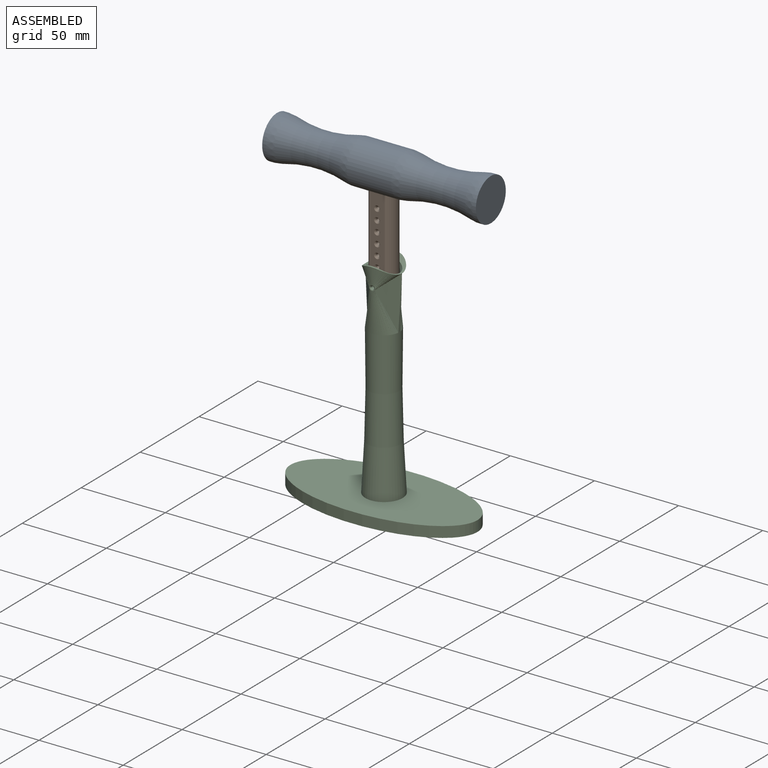
[diagram: assembled view]
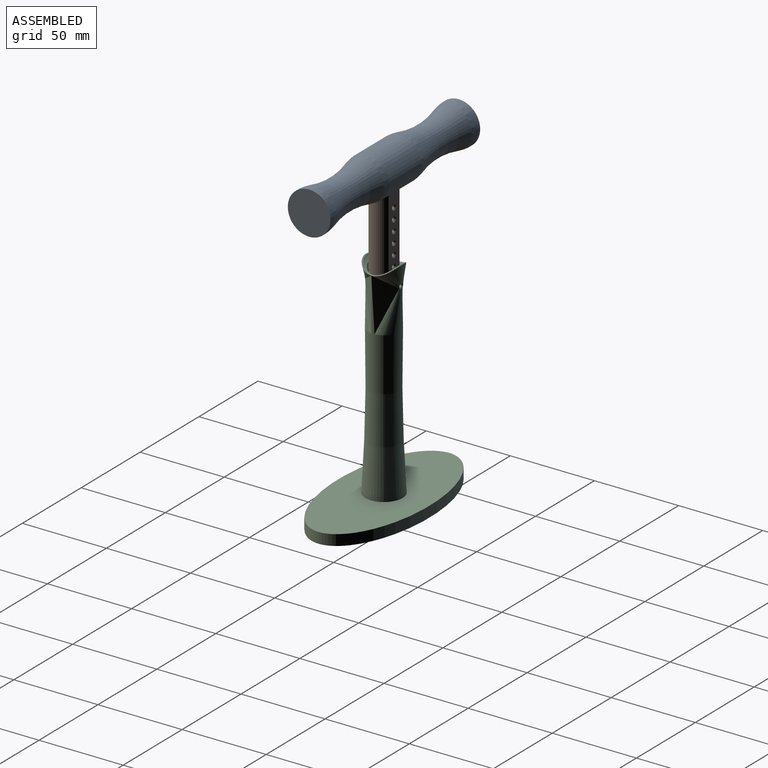
[diagram: assembled view, second angle]
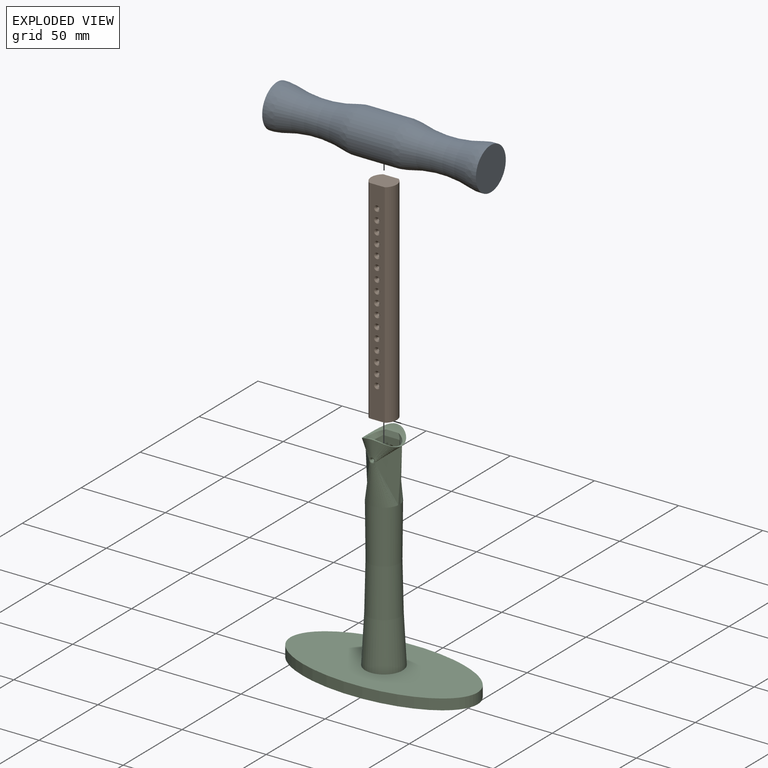
[diagram: exploded view]
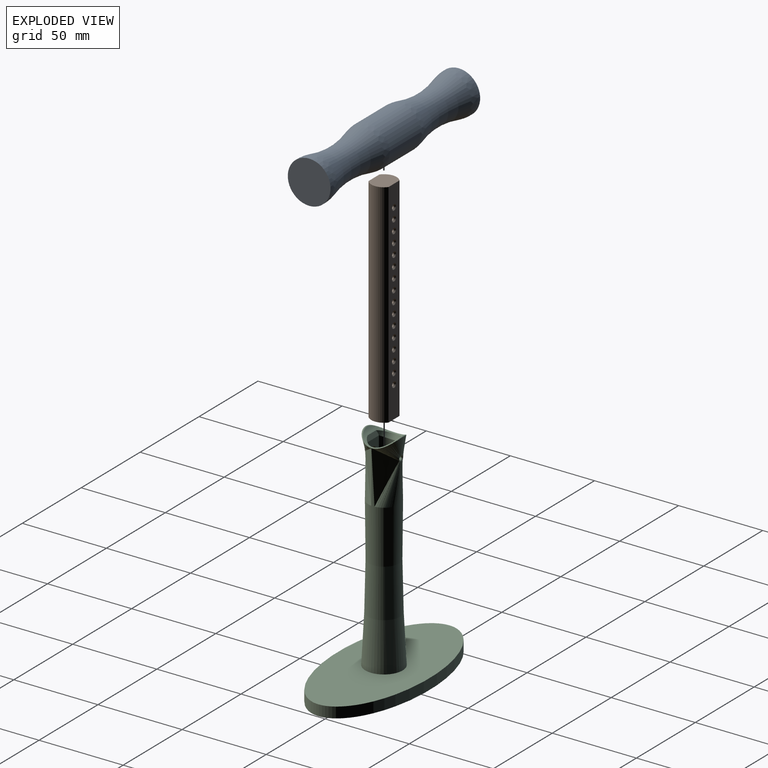
[diagram: exploded view, second angle]
ASSEMBLY  parts=3 mates=2
PART A: 16 faces, bbox 179.6x67x67 mm
  f0: cylinder r=12.7mm len=26.44mm, axis (-1,0,0), area 1937.9mm2, adj f1,f2,f3,f4,f8,f13
  f1: cylinder r=7.68mm len=12.19mm, axis (0,0,1), area 74.2mm2, adj f0,f2,f4,f5
  f2: plane 9.35x4.28mm, normal (0,-1,0), area 40.1mm2, adj f0,f1,f3,f5
  f3: cylinder r=7.68mm len=12.19mm, axis (0,0,1), area 74.2mm2, adj f0,f2,f4,f5
  f4: plane 9.35x4.28mm, normal (0,1,0), area 40.1mm2, adj f0,f1,f3,f5
  f5: plane 15.37x12.19mm, normal (0,0,-1), area 165.2mm2, adj f1,f2,f3,f4
  f6: torus R=83.44mm, axis (1,0,0), area 2524.3mm2, adj f7,f8
  f7: revolved ~25.4x25.4mm, area 391.6mm2, adj f6,f10
  f8: revolved ~25.4x25.4mm, area 391.6mm2, adj f0,f6
  f9: plane 25.4x25.4mm, normal (1,0,0), area 506.7mm2, adj f10
  f10: cylinder r=12.7mm len=25.4mm, axis (-1,0,0), area 168mm2, adj f7,f9
  f11: revolved ~25.4x25.4mm, area 391.6mm2, adj f12,f15
  f12: torus R=83.44mm, axis (1,0,0), area 2524.3mm2, adj f11,f13
  f13: revolved ~25.4x25.4mm, area 391.6mm2, adj f0,f12
  f14: plane 25.4x25.4mm, normal (-1,0,0), area 506.7mm2, adj f15
  f15: cylinder r=12.7mm len=25.4mm, axis (-1,0,0), area 168mm2, adj f11,f14
PART B: 54 faces, bbox 15.1x11.9x126.5 mm
  f0: plane 15.11x11.94mm, normal (0,0,1), area 159.3mm2, adj f1,f2,f3,f4
  f1: plane 126.49x9.27mm, normal (0,1,0), area 1029.2mm2, adj f0,f2,f4,f5,f27,f28,f29,f30
  f2: cylinder r=7.56mm len=126.49mm, axis (0,0,-1), area 1740.9mm2, adj f0,f1,f3,f5
  f3: plane 126.49x9.27mm, normal (0,-1,0), area 1029.2mm2, adj f0,f2,f4,f5,f22,f23,f24,f25
  f4: cylinder r=7.56mm len=126.49mm, axis (0,0,-1), area 1740.9mm2, adj f0,f1,f3,f5
  f5: plane 15.11x11.94mm, normal (0,0,-1), area 159.3mm2, adj f1,f2,f3,f4
  f6: cylinder r=0.93mm len=10.41mm, axis (0,-1,0), area 60.5mm2, adj f22,f27
  f7: cylinder r=0.93mm len=10.41mm, axis (0,-1,0), area 60.5mm2, adj f23,f28
  f8: cylinder r=0.93mm len=10.41mm, axis (0,-1,0), area 60.5mm2, adj f24,f29
  f9: cylinder r=0.93mm len=10.41mm, axis (0,-1,0), area 60.5mm2, adj f25,f30
  f10: cylinder r=0.93mm len=10.41mm, axis (0,-1,0), area 60.5mm2, adj f26,f31
  f11: cylinder r=0.93mm len=10.41mm, axis (0,-1,0), area 60.5mm2, adj f32,f43
  f12: cylinder r=0.93mm len=10.41mm, axis (0,-1,0), area 60.5mm2, adj f33,f44
  f13: cylinder r=0.93mm len=10.41mm, axis (0,-1,0), area 60.5mm2, adj f34,f45
  f14: cylinder r=0.93mm len=10.41mm, axis (0,-1,0), area 60.5mm2, adj f35,f46
  f15: cylinder r=0.93mm len=10.41mm, axis (0,-1,0), area 60.5mm2, adj f36,f47
  f16: cylinder r=0.93mm len=10.41mm, axis (0,-1,0), area 60.5mm2, adj f37,f48
  f17: cylinder r=0.93mm len=10.41mm, axis (0,-1,0), area 60.5mm2, adj f38,f49
  f18: cylinder r=0.93mm len=10.41mm, axis (0,-1,0), area 60.5mm2, adj f39,f50
  f19: cylinder r=0.93mm len=10.41mm, axis (0,-1,0), area 60.5mm2, adj f40,f51
  f20: cylinder r=0.93mm len=10.41mm, axis (0,-1,0), area 60.5mm2, adj f41,f52
  f21: cylinder r=0.93mm len=10.41mm, axis (0,-1,0), area 60.5mm2, adj f42,f53
  f22: cone r=0.93mm half-angle=45deg, axis (0,-1,0), area 8.8mm2, adj f3,f6
  f23: cone r=0.93mm half-angle=45deg, axis (0,-1,0), area 8.8mm2, adj f3,f7
  f24: cone r=0.93mm half-angle=45deg, axis (0,-1,0), area 8.8mm2, adj f3,f8
  f25: cone r=0.93mm half-angle=45deg, axis (0,-1,0), area 8.8mm2, adj f3,f9
  f26: cone r=0.93mm half-angle=45deg, axis (0,-1,0), area 8.8mm2, adj f3,f10
  f27: cone r=0.93mm half-angle=45deg, axis (0,1,0), area 8.8mm2, adj f1,f6
  f28: cone r=0.93mm half-angle=45deg, axis (0,1,0), area 8.8mm2, adj f1,f7
  f29: cone r=0.93mm half-angle=45deg, axis (0,1,0), area 8.8mm2, adj f1,f8
  f30: cone r=0.93mm half-angle=45deg, axis (0,1,0), area 8.8mm2, adj f1,f9
  f31: cone r=0.93mm half-angle=45deg, axis (0,1,0), area 8.8mm2, adj f1,f10
  f32: cone r=0.93mm half-angle=45deg, axis (0,1,0), area 8.8mm2, adj f1,f11
  f33: cone r=0.93mm half-angle=45deg, axis (0,1,0), area 8.8mm2, adj f1,f12
  f34: cone r=0.93mm half-angle=45deg, axis (0,1,0), area 8.8mm2, adj f1,f13
  f35: cone r=0.93mm half-angle=45deg, axis (0,1,0), area 8.8mm2, adj f1,f14
  f36: cone r=0.93mm half-angle=45deg, axis (0,1,0), area 8.8mm2, adj f1,f15
  f37: cone r=0.93mm half-angle=45deg, axis (0,1,0), area 8.8mm2, adj f1,f16
  f38: cone r=0.93mm half-angle=45deg, axis (0,1,0), area 8.8mm2, adj f1,f17
  f39: cone r=0.93mm half-angle=45deg, axis (0,1,0), area 8.8mm2, adj f1,f18
  f40: cone r=0.93mm half-angle=45deg, axis (0,1,0), area 8.8mm2, adj f1,f19
  f41: cone r=0.93mm half-angle=45deg, axis (0,1,0), area 8.8mm2, adj f1,f20
  f42: cone r=0.93mm half-angle=45deg, axis (0,1,0), area 8.8mm2, adj f1,f21
  f43: cone r=0.93mm half-angle=45deg, axis (0,-1,0), area 8.8mm2, adj f3,f11
  f44: cone r=0.93mm half-angle=45deg, axis (0,-1,0), area 8.8mm2, adj f3,f12
  f45: cone r=0.93mm half-angle=45deg, axis (0,-1,0), area 8.8mm2, adj f3,f13
  f46: cone r=0.93mm half-angle=45deg, axis (0,-1,0), area 8.8mm2, adj f3,f14
  f47: cone r=0.93mm half-angle=45deg, axis (0,-1,0), area 8.8mm2, adj f3,f15
  f48: cone r=0.93mm half-angle=45deg, axis (0,-1,0), area 8.8mm2, adj f3,f16
  f49: cone r=0.93mm half-angle=45deg, axis (0,-1,0), area 8.8mm2, adj f3,f17
  f50: cone r=0.93mm half-angle=45deg, axis (0,-1,0), area 8.8mm2, adj f3,f18
  f51: cone r=0.93mm half-angle=45deg, axis (0,-1,0), area 8.8mm2, adj f3,f19
  f52: cone r=0.93mm half-angle=45deg, axis (0,-1,0), area 8.8mm2, adj f3,f20
  f53: cone r=0.93mm half-angle=45deg, axis (0,-1,0), area 8.8mm2, adj f3,f21
PART C: 21 faces, bbox 606x606x1326.6 mm
  f0: plane 111.13x53.98mm, normal (0,0,1), area 4322.8mm2, adj f1,f3
  f1: extruded ~111.13x53.98mm, area 1696.6mm2, adj f0,f2
  f2: plane 111.13x53.98mm, normal (0,0,-1), area 4710.8mm2, adj f1
  f3: torus R=943.02mm, axis (0,0,1), area 7414.8mm2, adj f0,f10,f17,f18
  f4: bspline ~15.41x7.55mm, area 51.1mm2, adj f6,f9,f11,f14
  f5: bspline ~15.41x7.55mm, area 51.1mm2, adj f6,f8,f9,f11
  f6: plane 9.77x3.26mm, normal (0,-0.96,0.27), area 27mm2, adj f4,f5,f9,f12
  f7: plane 15.88x12.7mm, normal (0,0,1), area 177.3mm2, adj f8,f12,f14,f15
  f8: cylinder r=7.94mm len=119.73mm, axis (0,0,1), area 1762.5mm2, adj f5,f7,f12,f15
  f9: cylinder r=12.83mm len=20.96mm, axis (1,0,0), area 125.3mm2, adj f4,f5,f6,f10,f11
  f10: bspline ~22.11x21.98mm, area 50.5mm2, adj f3,f9
  f11: plane 9.77x3.26mm, normal (0,0.96,0.27), area 27mm2, adj f4,f5,f9,f15
  f12: plane 119.73x9.53mm, normal (0,-1,0), area 1128.5mm2, adj f6,f7,f8,f14,f19
  f13: cylinder r=0.93mm len=2.09mm, axis (0,-1,0), area 12.1mm2, adj f17,f19
  f14: cylinder r=7.94mm len=119.73mm, axis (0,0,1), area 1762.5mm2, adj f4,f7,f12,f15
  f15: plane 119.73x9.53mm, normal (0,1,0), area 1128.5mm2, adj f7,f8,f11,f14,f20
  f16: cylinder r=0.93mm len=2.09mm, axis (0,-1,0), area 12mm2, adj f18,f20
  f17: bspline ~3.65x3.38mm, area 9.8mm2, adj f3,f13
  f18: bspline ~3.65x3.37mm, area 9.8mm2, adj f3,f16
  f19: cone r=0.93mm half-angle=45deg, axis (0,-1,0), area 12.9mm2, adj f12,f13
  f20: cone r=1.94mm half-angle=45deg, axis (0,1,0), area 12.9mm2, adj f15,f16
PLACE A t=(0,0,40.93)mm
PLACE B t=(0,0,40.93)mm
PLACE C at identity fixed
MATE slider C.f8 <-> B.f2  axis (0,0,1) through (0,0,0)mm
MATE fastened A.f1 <-> B.f4  axis (0,0,-1) through (0,0,167.42)mm
